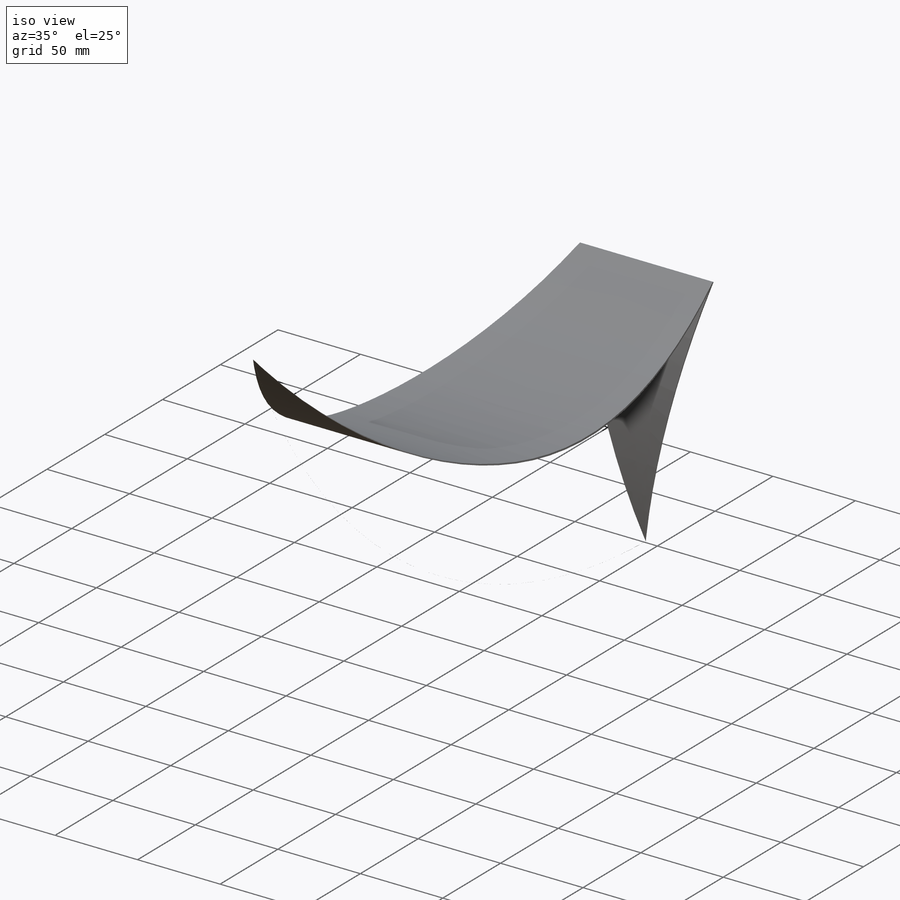
[diagram: iso view]
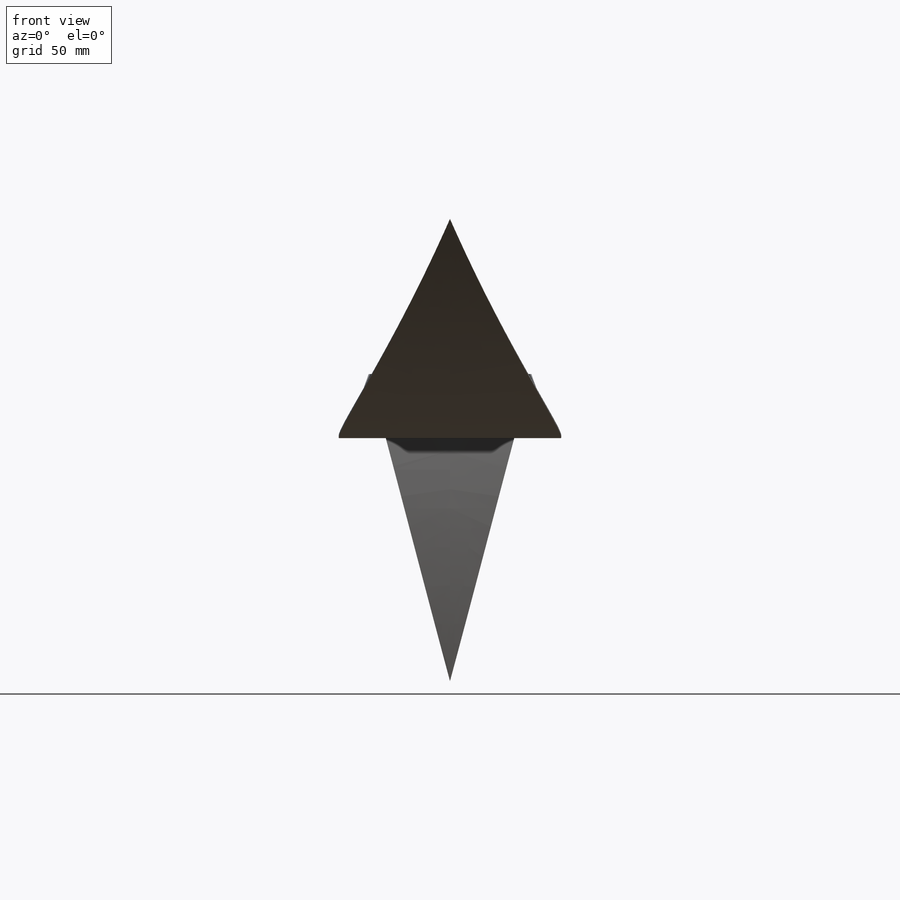
[diagram: front view]
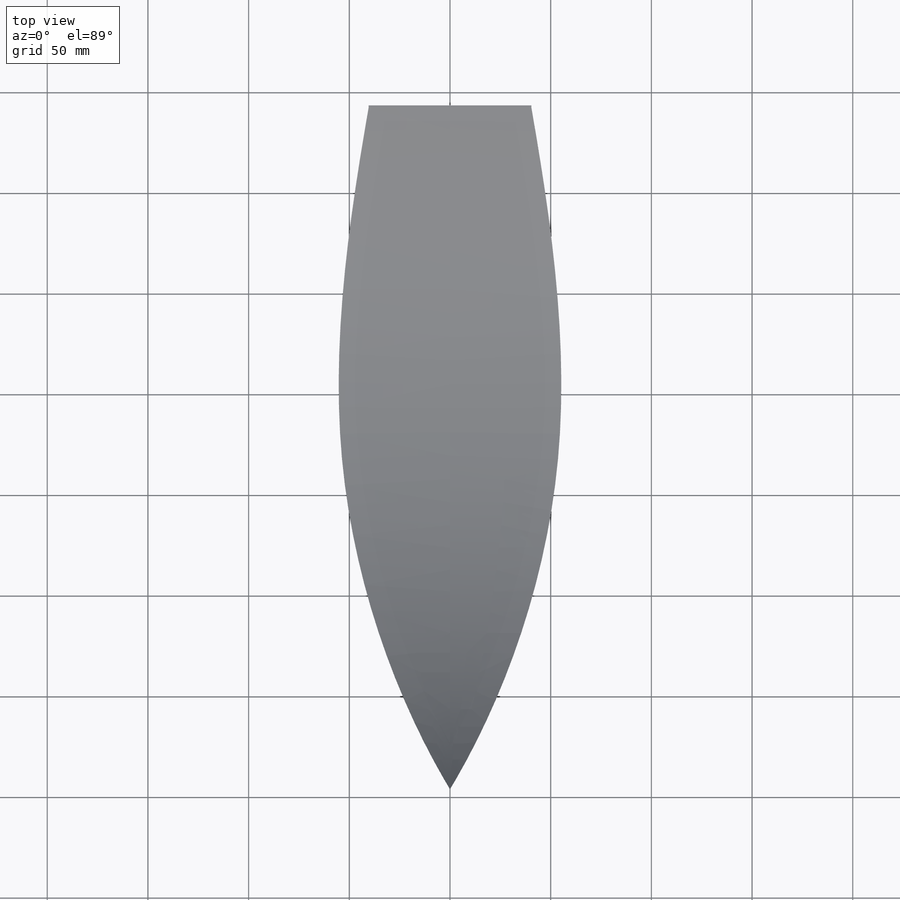
[diagram: top view]
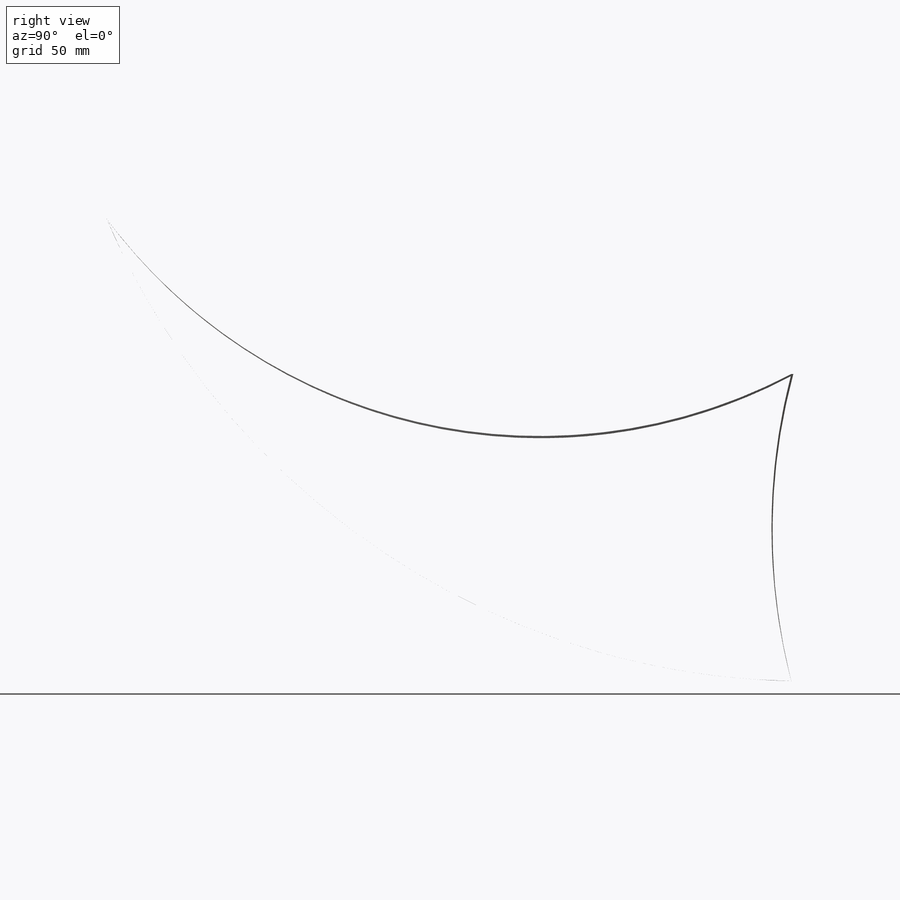
[diagram: right view]
SOLIDWORKS PART (.sldprt)
format: sldprt  version: not decoded by parser v0  size: 309,760 bytes
history: native  units: mm
features: sketch x10, plane x8, material x1, sweep x1 (+9 scaffold rows collapsed)
feature tree (29):
  scaffold x9  (default folders/planes/origin — collapsed)
  material  "Material <nicht festgelegt>"
  plane  "Vorne"
  plane  "Oben"
  plane  "Mitte1"
  plane  "Hinten"  Offset=340mm
  plane  "Mitte2"  Offset=170mm
  plane  "Boden"  Offset=229.5mm
  sketch  "Schnitt Kontur"  dims[c1.D4=100.0mm c1.D6=360.0mm c2.D4=300.0mm c2.D7=350.0mm c2.D1=340.0mm c2.D2=152.5mm c2.D3=229.5mm c2.D5=170.0mm c2.123=~89.58746mm c2.D6=~86.842094mm c3.D7=~142.657906mm c3.D6=~86.842094mm c3.D5=170.0mm c4.D6=~126.855756mm c4.D5=170.0mm c5.D6=~126.970313mm c5.D5=170.0mm c6.D6=~126.855756mm c6.D5=170.0mm c7.D6=~126.855756mm c7.D3=77.0mm c8.D6=~103.552913mm]
  sketch  "Ende"  dims[D1=1.0mm D2=80.8mm D3=77.0mm]
  sketch  "Mitte"  dims[c1.D1=1.0mm c1.D2=108.0mm c1.D3=86.48mm c1.D4=81.48mm c1.D5=86.48mm c2.D4=81.48mm c2.D3=104.0mm]
  sketch  "Spitze"  dims[D1=0.01mm]
  plane  "Ebene2"
  sketch  "Oben2"  dims[D1=1.0mm]
  sketch  "Unten2"  dims[D1=0.01mm]
  plane  "Ebene4"
  sketch  "Skizze19"  dims[D1=1.0mm]
  sketch  "Schnitt Kontur<2>"
  sketch  "Skizze16"  dims[D1=10.0mm]
  sketch  "Skizze17"
  sweep  "Austragung4"
decode coverage: 8 of 11 modeling features carry decoded parameters
note: ~ marks probable driven/reference dimensions
note: suppression state not decoded; provenance and decode notes live in map.json
